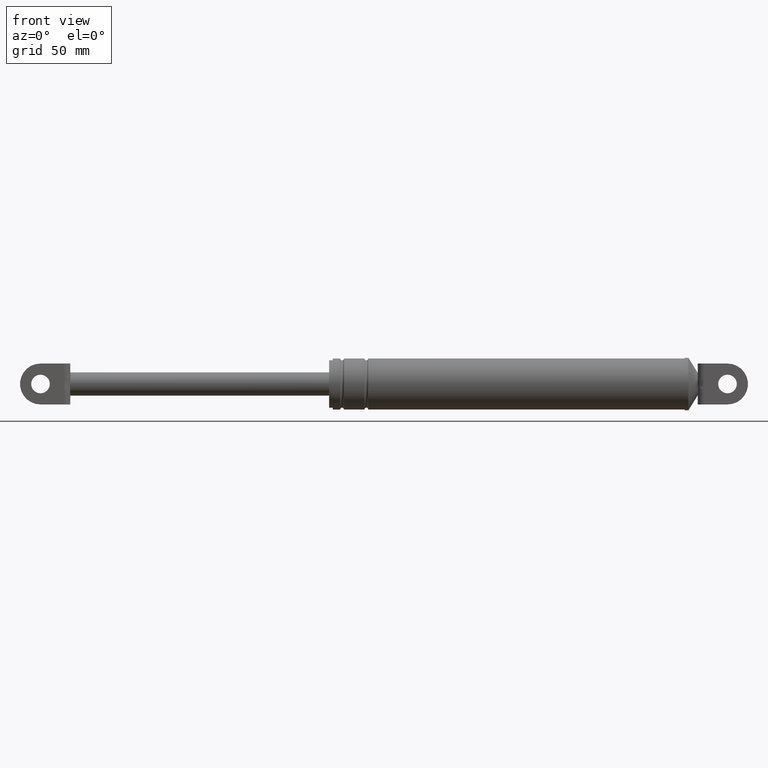
[diagram: clean part render]
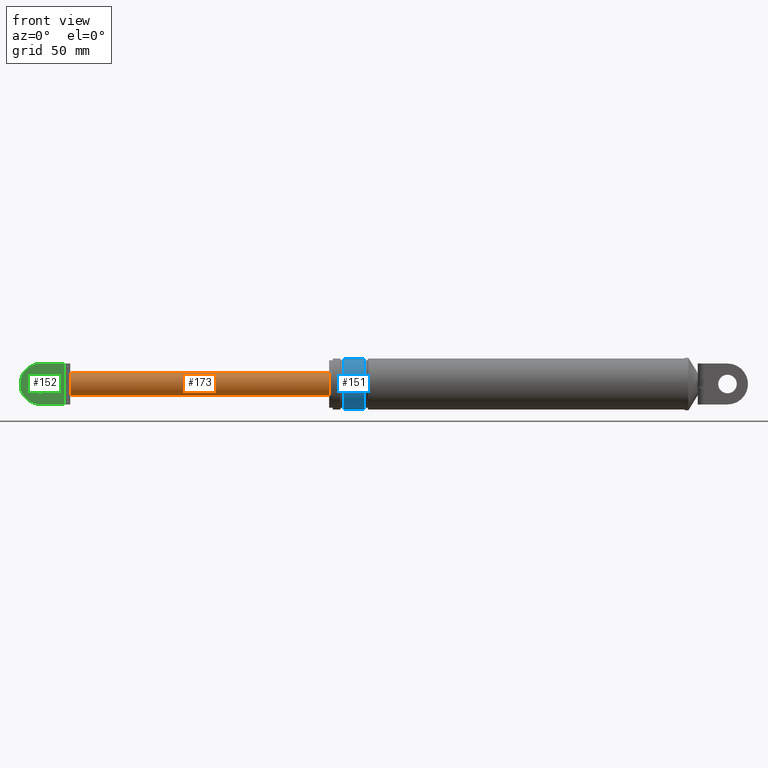
[diagram: same view with three faces highlighted in distinct colors, each labeled with its STEP entity id]
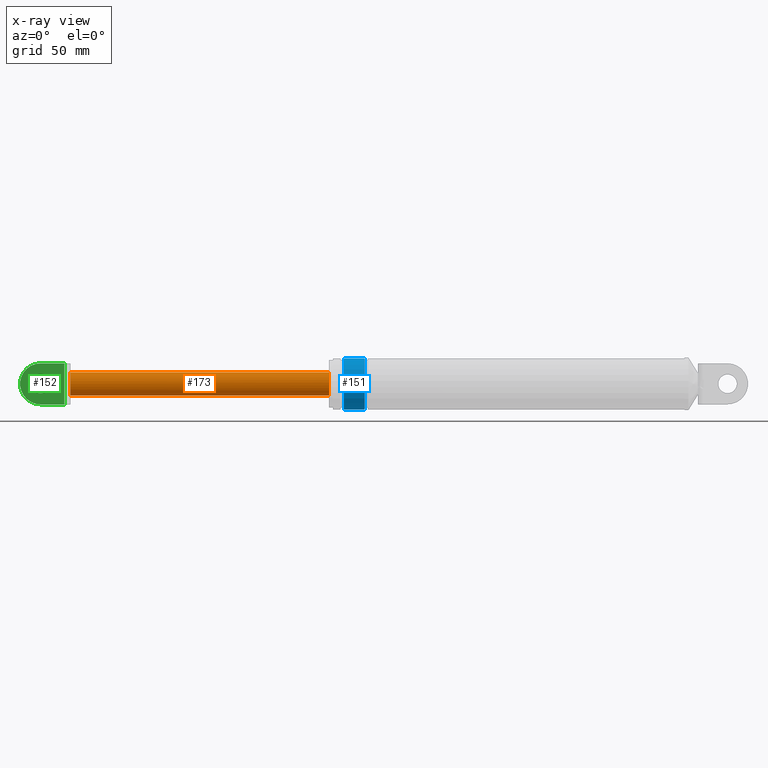
[diagram: x-ray of the same camera — body ghosted, the three highlighted faces saturated]
A machine part, front view with three faces highlighted in distinct colors.
The next image is the same camera in x-ray (body ghosted, the three faces saturated) — at least one of them is partly hidden behind the body in this view.
Their STEP definitions:

[orange] entity #173 — the highlighted cylindrical surface (edge-blend (fillet) strip) has radius 6.25 mm, axis along (1, 0, 0).
#173=ADVANCED_FACE('',(#797),#796,.T.);
#796=CYLINDRICAL_SURFACE('',#1384,6.25000000000E+000);
#797=FACE_OUTER_BOUND('',#1385,.T.);
#1381=CARTESIAN_POINT('',(0.00000000000E+000,0.00000000000E+000,1.83766279997E+002));
#1382=DIRECTION('',(1.00000000000E+000,-0.00000000000E+000,-0.00000000000E+000));
#1383=DIRECTION('',(-0.00000000000E+000,-0.00000000000E+000,-1.00000000000E+000));
#1384=AXIS2_PLACEMENT_3D('',#1381,#1382,#1383);
#1385=EDGE_LOOP('',(#1694,#1695,#1696,#1697,#1698,#1699));
#1694=ORIENTED_EDGE('',*,*,#1832,.F.);
#1695=ORIENTED_EDGE('',*,*,#1811,.F.);
#1696=ORIENTED_EDGE('',*,*,#1842,.F.);
#1697=ORIENTED_EDGE('',*,*,#1860,.T.);
#1698=ORIENTED_EDGE('',*,*,#1852,.T.);
#1699=ORIENTED_EDGE('',*,*,#1861,.F.);
#1811=EDGE_CURVE('',#2542,#2549,#2550,.T.);
#1832=EDGE_CURVE('',#2549,#2691,#2692,.T.);
#1842=EDGE_CURVE('',#2752,#2542,#2759,.T.);
#1852=EDGE_CURVE('',#2822,#2823,#2824,.T.);
#1860=EDGE_CURVE('',#2752,#2822,#2874,.T.);
#1861=EDGE_CURVE('',#2691,#2823,#2880,.T.);
#2542=VERTEX_POINT('',#3336);
#2549=VERTEX_POINT('',#3341);
#2550=CIRCLE('',#3345,6.25000000000E+000);
#2691=VERTEX_POINT('',#3438);
#2692=CIRCLE('',#3442,6.25000000000E+000);
#2752=VERTEX_POINT('',#3477);
#2759=CIRCLE('',#3485,6.25000000000E+000);
#2822=VERTEX_POINT('',#3517);
#2823=VERTEX_POINT('',#3518);
#2824=CIRCLE('',#3522,6.25000000000E+000);
#2874=(BOUNDED_CURVE() B_SPLINE_CURVE(1,(#3548,#3549),.UNSPECIFIED.,.F.,.F.) B_SPLINE_CURVE_WITH_KNOTS((2,2),(6.28930816424E-002,9.37106918113E-001),.UNSPECIFIED.) CURVE() GEOMETRIC_REPRESENTATION_ITEM() RATIONAL_B_SPLINE_CURVE((1.00000000000E+000,1.00000000000E+000)) REPRESENTATION_ITEM('') );
#2880=(BOUNDED_CURVE() B_SPLINE_CURVE(1,(#3550,#3551),.UNSPECIFIED.,.F.,.F.) B_SPLINE_CURVE_WITH_KNOTS((2,2),(6.28930817610E-002,9.37106918239E-001),.UNSPECIFIED.) CURVE() GEOMETRIC_REPRESENTATION_ITEM() RATIONAL_B_SPLINE_CURVE((7.50000000000E-001,7.50000000000E-001)) REPRESENTATION_ITEM('') );
#3336=CARTESIAN_POINT('',(4.55796156477E+001,-5.49999700000E+000,1.80797688917E+002));
#3341=CARTESIAN_POINT('',(4.55796156477E+001,-5.49999700000E+000,1.86734871077E+002));
#3342=CARTESIAN_POINT('',(4.55796156477E+001,0.00000000000E+000,1.83766279997E+002));
#3343=DIRECTION('',(-1.00000000000E+000,0.00000000000E+000,0.00000000000E+000));
#3344=DIRECTION('',(-0.00000000000E+000,-0.00000000000E+000,-1.00000000000E+000));
#3345=AXIS2_PLACEMENT_3D('',#3342,#3343,#3344);
#3438=CARTESIAN_POINT('',(4.55796156477E+001,7.89135286890E-007,1.90016279997E+002));
#3439=CARTESIAN_POINT('',(4.55796156477E+001,0.00000000000E+000,1.83766279997E+002));
#3440=DIRECTION('',(-1.00000000000E+000,0.00000000000E+000,0.00000000000E+000));
#3441=DIRECTION('',(-0.00000000000E+000,-0.00000000000E+000,-1.00000000000E+000));
#3442=AXIS2_PLACEMENT_3D('',#3439,#3440,#3441);
#3477=CARTESIAN_POINT('',(4.55796156477E+001,-4.27265024938E-012,1.77516279997E+002));
#3482=CARTESIAN_POINT('',(4.55796156477E+001,0.00000000000E+000,1.83766279997E+002));
#3483=DIRECTION('',(-1.00000000000E+000,0.00000000000E+000,0.00000000000E+000));
#3484=DIRECTION('',(-0.00000000000E+000,8.79999520000E-001,-4.74974572793E-001));
#3485=AXIS2_PLACEMENT_3D('',#3482,#3483,#3484);
#3517=CARTESIAN_POINT('',(1.84579615648E+002,0.00000000000E+000,1.77516279997E+002));
#3518=CARTESIAN_POINT('',(1.84579615648E+002,0.00000000000E+000,1.90016279997E+002));
#3519=CARTESIAN_POINT('',(1.84579615648E+002,0.00000000000E+000,1.83766279997E+002));
#3520=DIRECTION('',(-1.00000000000E+000,0.00000000000E+000,0.00000000000E+000));
#3521=DIRECTION('',(0.00000000000E+000,-1.22460635382E-016,1.00000000000E+000));
#3522=AXIS2_PLACEMENT_3D('',#3519,#3520,#3521);
#3548=CARTESIAN_POINT('',(4.55796156289E+001,0.00000000000E+000,1.77516279997E+002));
#3549=CARTESIAN_POINT('',(1.84579615628E+002,0.00000000000E+000,1.77516279997E+002));
#3550=CARTESIAN_POINT('',(4.55796156477E+001,0.00000000000E+000,1.90016279997E+002));
#3551=CARTESIAN_POINT('',(1.84579615648E+002,0.00000000000E+000,1.90016279997E+002));

[blue] entity #151 — the highlighted cylindrical surface (edge-blend (fillet) strip) has radius 13.7 mm, axis along (1, 0, 0).
#151=ADVANCED_FACE('',(#573),#572,.T.);
#572=CYLINDRICAL_SURFACE('',#1218,1.37000000000E+001);
#573=FACE_OUTER_BOUND('',#1219,.T.);
#1215=CARTESIAN_POINT('',(0.00000000000E+000,0.00000000000E+000,1.83766279997E+002));
#1216=DIRECTION('',(1.00000000000E+000,-0.00000000000E+000,-0.00000000000E+000));
#1217=DIRECTION('',(0.00000000000E+000,0.00000000000E+000,-1.00000000000E+000));
#1218=AXIS2_PLACEMENT_3D('',#1215,#1216,#1217);
#1219=EDGE_LOOP('',(#1580,#1581,#1582,#1583));
#1580=ORIENTED_EDGE('',*,*,#1785,.F.);
#1581=ORIENTED_EDGE('',*,*,#1800,.T.);
#1582=ORIENTED_EDGE('',*,*,#1790,.T.);
#1583=ORIENTED_EDGE('',*,*,#1801,.F.);
#1785=EDGE_CURVE('',#2359,#2358,#2378,.T.);
#1790=EDGE_CURVE('',#2392,#2399,#2412,.T.);
#1800=EDGE_CURVE('',#2359,#2392,#2474,.T.);
#1801=EDGE_CURVE('',#2358,#2399,#2480,.T.);
#2358=VERTEX_POINT('',#3214);
#2359=VERTEX_POINT('',#3215);
#2378=CIRCLE('',#3235,1.37000000000E+001);
#2392=VERTEX_POINT('',#3242);
#2399=VERTEX_POINT('',#3248);
#2412=CIRCLE('',#3263,1.37000000000E+001);
#2474=(BOUNDED_CURVE() B_SPLINE_CURVE(1,(#3290,#3291),.UNSPECIFIED.,.F.,.F.) B_SPLINE_CURVE_WITH_KNOTS((2,2),(8.33333343261E-002,9.16666667006E-001),.UNSPECIFIED.) CURVE() GEOMETRIC_REPRESENTATION_ITEM() RATIONAL_B_SPLINE_CURVE((1.00000000000E+000,1.00000000000E+000)) REPRESENTATION_ITEM('') );
#2480=(BOUNDED_CURVE() B_SPLINE_CURVE(1,(#3292,#3293),.UNSPECIFIED.,.F.,.F.) B_SPLINE_CURVE_WITH_KNOTS((2,2),(8.33333333333E-002,9.16666666667E-001),.UNSPECIFIED.) CURVE() GEOMETRIC_REPRESENTATION_ITEM() RATIONAL_B_SPLINE_CURVE((7.50000000000E-001,7.50000000000E-001)) REPRESENTATION_ITEM('') );
#3214=CARTESIAN_POINT('',(1.92579615648E+002,0.00000000000E+000,1.97466279997E+002));
#3215=CARTESIAN_POINT('',(1.92579615648E+002,0.00000000000E+000,1.70066279997E+002));
#3232=CARTESIAN_POINT('',(1.92579615648E+002,0.00000000000E+000,1.83766279997E+002));
#3233=DIRECTION('',(-1.00000000000E+000,0.00000000000E+000,0.00000000000E+000));
#3234=DIRECTION('',(0.00000000000E+000,-1.22460635382E-016,1.00000000000E+000));
#3235=AXIS2_PLACEMENT_3D('',#3232,#3233,#3234);
#3242=CARTESIAN_POINT('',(2.03579615648E+002,0.00000000000E+000,1.70066279997E+002));
#3248=CARTESIAN_POINT('',(2.03579615648E+002,0.00000000000E+000,1.97466279997E+002));
#3260=CARTESIAN_POINT('',(2.03579615648E+002,0.00000000000E+000,1.83766279997E+002));
#3261=DIRECTION('',(-1.00000000000E+000,0.00000000000E+000,0.00000000000E+000));
#3262=DIRECTION('',(0.00000000000E+000,-1.22460635382E-016,1.00000000000E+000));
#3263=AXIS2_PLACEMENT_3D('',#3260,#3261,#3262);
#3290=CARTESIAN_POINT('',(1.92579615661E+002,0.00000000000E+000,1.70066279997E+002));
#3291=CARTESIAN_POINT('',(2.03579615652E+002,0.00000000000E+000,1.70066279997E+002));
#3292=CARTESIAN_POINT('',(1.92579615648E+002,-5.92118946467E-016,1.97466279997E+002));
#3293=CARTESIAN_POINT('',(2.03579615648E+002,-5.92118946467E-016,1.97466279997E+002));

[green] entity #152 — the highlighted planar face has unit normal (0, -1, 0).
#152=ADVANCED_FACE('',(#583,#584),#582,.T.);
#582=PLANE('',#1223);
#583=FACE_OUTER_BOUND('',#1224,.T.);
#584=FACE_BOUND('',#1225,.T.);
#1220=CARTESIAN_POINT('',(1.61906994060E+001,-8.69999700000E+000,1.96966279997E+002));
#1221=DIRECTION('',(0.00000000000E+000,-1.00000000000E+000,0.00000000000E+000));
#1222=DIRECTION('',(0.00000000000E+000,0.00000000000E+000,-1.00000000000E+000));
#1223=AXIS2_PLACEMENT_3D('',#1220,#1221,#1222);
#1224=EDGE_LOOP('',(#1584,#1585,#1586,#1587,#1588,#1589));
#1225=EDGE_LOOP('',(#1590,#1591));
#1584=ORIENTED_EDGE('',*,*,#1802,.F.);
#1585=ORIENTED_EDGE('',*,*,#1803,.T.);
#1586=ORIENTED_EDGE('',*,*,#1804,.T.);
#1587=ORIENTED_EDGE('',*,*,#1805,.T.);
#1588=ORIENTED_EDGE('',*,*,#1806,.T.);
#1589=ORIENTED_EDGE('',*,*,#1807,.T.);
#1590=ORIENTED_EDGE('',*,*,#1808,.F.);
#1591=ORIENTED_EDGE('',*,*,#1809,.F.);
#1802=EDGE_CURVE('',#2486,#2487,#2488,.T.);
#1803=EDGE_CURVE('',#2486,#2494,#2495,.T.);
#1804=EDGE_CURVE('',#2494,#2501,#2502,.T.);
#1805=EDGE_CURVE('',#2501,#2508,#2509,.T.);
#1806=EDGE_CURVE('',#2508,#2515,#2516,.T.);
#1807=EDGE_CURVE('',#2515,#2487,#2522,.T.);
#1808=EDGE_CURVE('',#2528,#2529,#2530,.T.);
#1809=EDGE_CURVE('',#2529,#2528,#2536,.T.);
#2486=VERTEX_POINT('',#3294);
#2487=VERTEX_POINT('',#3295);
#2488=LINE('',#3296,#3297);
#2494=VERTEX_POINT('',#3299);
#2495=LINE('',#3300,#3301);
#2501=VERTEX_POINT('',#3303);
#2502=(BOUNDED_CURVE() B_SPLINE_CURVE(3,(#3304,#3305,#3306,#3307,#3308,#3309,#3310,#3311,#3312,#3313),.UNSPECIFIED.,.F.,.F.) B_SPLINE_CURVE_WITH_KNOTS((4,2,2,2,4),(0.00000000000E+000,1.48458878572E-003,2.96917757145E-003,4.45376635717E-003,5.93835514290E-003),.UNSPECIFIED.) CURVE() GEOMETRIC_REPRESENTATION_ITEM() RATIONAL_B_SPLINE_CURVE((1.00000000000E+000,1.00000000000E+000,1.00000000000E+000,1.00000000000E+000,1.00000000000E+000,1.00000000000E+000,1.00000000000E+000,1.00000000000E+000,1.00000000000E+000,1.00000000000E+000)) REPRESENTATION_ITEM('') );
#2508=VERTEX_POINT('',#3314);
#2509=LINE('',#3315,#3316);
#2515=VERTEX_POINT('',#3318);
#2516=LINE('',#3319,#3320);
#2522=CIRCLE('',#3325,1.10000000000E+001);
#2528=VERTEX_POINT('',#3326);
#2529=VERTEX_POINT('',#3327);
#2530=CIRCLE('',#3331,5.00000000000E+000);
#2536=CIRCLE('',#3335,5.00000000000E+000);
#3294=CARTESIAN_POINT('',(4.23796156477E+001,-8.69999700000E+000,1.72766279997E+002));
#3295=CARTESIAN_POINT('',(2.95796146878E+001,-8.69999700000E+000,1.72766279997E+002));
#3296=CARTESIAN_POINT('',(4.23796156477E+001,-8.69999700000E+000,1.72766279997E+002));
#3297=VECTOR('',#3298,1.28000009599E+001);
#3298=DIRECTION('',(-1.00000000000E+000,0.00000000000E+000,0.00000000000E+000));
#3299=CARTESIAN_POINT('',(4.23796156477E+001,-8.69999700000E+000,1.80797688917E+002));
#3300=CARTESIAN_POINT('',(4.23796156477E+001,-8.69999700000E+000,1.72766279997E+002));
#3301=VECTOR('',#3302,8.03140892004E+000);
#3302=DIRECTION('',(0.00000000000E+000,0.00000000000E+000,1.00000000000E+000));
#3303=CARTESIAN_POINT('',(4.23796156477E+001,-8.69999700000E+000,1.86734871077E+002));
#3304=CARTESIAN_POINT('',(4.23796156477E+001,-8.69999700000E+000,1.80797688917E+002));
#3305=CARTESIAN_POINT('',(4.23796156477E+001,-8.69999700000E+000,1.81292552037E+002));
#3306=CARTESIAN_POINT('',(4.24051554052E+001,-8.69999700000E+000,1.81786858519E+002));
#3307=CARTESIAN_POINT('',(4.24503785435E+001,-8.69999700000E+000,1.82775569994E+002));
#3308=CARTESIAN_POINT('',(4.24687185024E+001,-8.69999700000E+000,1.83270025259E+002));
#3309=CARTESIAN_POINT('',(4.24687780649E+001,-8.69999700000E+000,1.84259789039E+002));
#3310=CARTESIAN_POINT('',(4.24504634433E+001,-8.69999700000E+000,1.84755026013E+002));
#3311=CARTESIAN_POINT('',(4.24052101759E+001,-8.69999700000E+000,1.85744611519E+002));
#3312=CARTESIAN_POINT('',(4.23796156477E+001,-8.69999700000E+000,1.86239302510E+002));
#3313=CARTESIAN_POINT('',(4.23796156477E+001,-8.69999700000E+000,1.86734871077E+002));
#3314=CARTESIAN_POINT('',(4.23796156477E+001,-8.69999700000E+000,1.94766279997E+002));
#3315=CARTESIAN_POINT('',(4.23796156477E+001,-8.69999700000E+000,1.86734871077E+002));
#3316=VECTOR('',#3317,8.03140892004E+000);
#3317=DIRECTION('',(0.00000000000E+000,0.00000000000E+000,1.00000000000E+000));
#3318=CARTESIAN_POINT('',(2.95796146878E+001,-8.69999700000E+000,1.94766279997E+002));
#3319=CARTESIAN_POINT('',(4.23796156477E+001,-8.69999700000E+000,1.94766279997E+002));
#3320=VECTOR('',#3321,1.28000009599E+001);
#3321=DIRECTION('',(-1.00000000000E+000,0.00000000000E+000,0.00000000000E+000));
#3322=CARTESIAN_POINT('',(2.95796156477E+001,-8.69999700000E+000,1.83766279997E+002));
#3323=DIRECTION('',(0.00000000000E+000,-1.00000000000E+000,0.00000000000E+000));
#3324=DIRECTION('',(-0.00000000000E+000,-0.00000000000E+000,-1.00000000000E+000));
#3325=AXIS2_PLACEMENT_3D('',#3322,#3323,#3324);
#3326=CARTESIAN_POINT('',(2.95796156477E+001,-8.69999700000E+000,1.78766279997E+002));
#3327=CARTESIAN_POINT('',(2.95796156477E+001,-8.69999700000E+000,1.88766279997E+002));
#3328=CARTESIAN_POINT('',(2.95796156477E+001,-8.69999700000E+000,1.83766279997E+002));
#3329=DIRECTION('',(-0.00000000000E+000,-1.00000000000E+000,0.00000000000E+000));
#3330=DIRECTION('',(-1.22460635382E-016,0.00000000000E+000,1.00000000000E+000));
#3331=AXIS2_PLACEMENT_3D('',#3328,#3329,#3330);
#3332=CARTESIAN_POINT('',(2.95796156477E+001,-8.69999700000E+000,1.83766279997E+002));
#3333=DIRECTION('',(-0.00000000000E+000,-1.00000000000E+000,0.00000000000E+000));
#3334=DIRECTION('',(-1.22460635382E-016,0.00000000000E+000,1.00000000000E+000));
#3335=AXIS2_PLACEMENT_3D('',#3332,#3333,#3334);